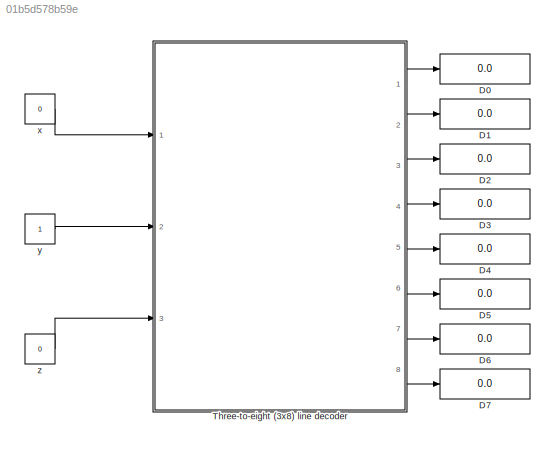
MODEL slx_01b5d578b59e
KIND model
CONFIG AbsTol = auto
CONFIG FixedStep = auto
CONFIG MaxStep = auto
CONFIG MinStep = auto
CONFIG RelTol = 1e-3
CONFIG SampleTimeConstraint = Unconstrained
CONFIG Solver = ode45
CONFIG SolverMode = Auto
CONFIG SolverName = ode45
CONFIG StartTime = 0.0
CONFIG StopTime = 10.0
BLOCK [Display] D0
  Decimation = 1
  Ports = [1]
BLOCK [Display] D1
  Decimation = 1
  Ports = [1]
BLOCK [Display] D2
  Decimation = 1
  Ports = [1]
BLOCK [Display] D3
  Decimation = 1
  Ports = [1]
BLOCK [Display] D4
  Decimation = 1
  Ports = [1]
BLOCK [Display] D5
  Decimation = 1
  Ports = [1]
BLOCK [Display] D6
  Decimation = 1
  Ports = [1]
BLOCK [Display] D7
  Decimation = 1
  Ports = [1]
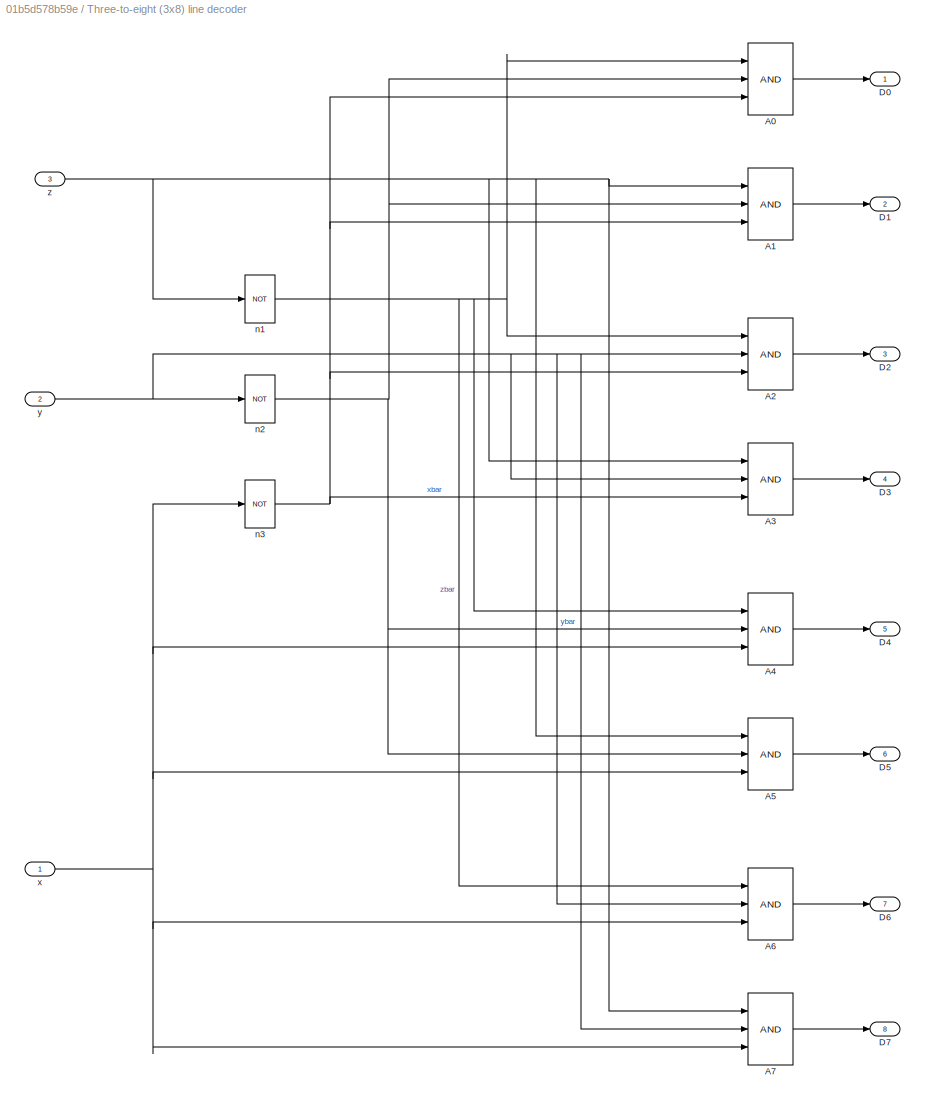
BLOCK [SubSystem] Three-to-eight (3x8) line decoder
  Ports = [3, 8]
  RequestExecContextInheritance = off
BLOCK [Logic] Three-to-eight (3x8) line decoder/A0
  AllPortsSameDT = off
  IconShape = distinctive
  Inputs = 3
  OutDataTypeStr = boolean
  Ports = [3, 1]
BLOCK [Logic] Three-to-eight (3x8) line decoder/A1
  AllPortsSameDT = off
  IconShape = distinctive
  Inputs = 3
  OutDataTypeStr = boolean
  Ports = [3, 1]
BLOCK [Logic] Three-to-eight (3x8) line decoder/A2
  AllPortsSameDT = off
  IconShape = distinctive
  Inputs = 3
  OutDataTypeStr = boolean
  Ports = [3, 1]
BLOCK [Logic] Three-to-eight (3x8) line decoder/A3
  AllPortsSameDT = off
  IconShape = distinctive
  Inputs = 3
  OutDataTypeStr = boolean
  Ports = [3, 1]
BLOCK [Logic] Three-to-eight (3x8) line decoder/A4
  AllPortsSameDT = off
  IconShape = distinctive
  Inputs = 3
  OutDataTypeStr = boolean
  Ports = [3, 1]
BLOCK [Logic] Three-to-eight (3x8) line decoder/A5
  AllPortsSameDT = off
  IconShape = distinctive
  Inputs = 3
  OutDataTypeStr = boolean
  Ports = [3, 1]
BLOCK [Logic] Three-to-eight (3x8) line decoder/A6
  AllPortsSameDT = off
  IconShape = distinctive
  Inputs = 3
  OutDataTypeStr = boolean
  Ports = [3, 1]
BLOCK [Logic] Three-to-eight (3x8) line decoder/A7
  AllPortsSameDT = off
  IconShape = distinctive
  Inputs = 3
  OutDataTypeStr = boolean
  Ports = [3, 1]
BLOCK [Outport] Three-to-eight (3x8) line decoder/D0
  IconDisplay = Port number
BLOCK [Outport] Three-to-eight (3x8) line decoder/D1
  IconDisplay = Port number
  Port = 2
BLOCK [Outport] Three-to-eight (3x8) line decoder/D2
  IconDisplay = Port number
  Port = 3
BLOCK [Outport] Three-to-eight (3x8) line decoder/D3
  IconDisplay = Port number
  Port = 4
BLOCK [Outport] Three-to-eight (3x8) line decoder/D4
  IconDisplay = Port number
  Port = 5
BLOCK [Outport] Three-to-eight (3x8) line decoder/D5
  IconDisplay = Port number
  Port = 6
BLOCK [Outport] Three-to-eight (3x8) line decoder/D6
  IconDisplay = Port number
  Port = 7
BLOCK [Outport] Three-to-eight (3x8) line decoder/D7
  IconDisplay = Port number
  Port = 8
BLOCK [Logic] Three-to-eight (3x8) line decoder/n1
  AllPortsSameDT = off
  IconShape = distinctive
  Inputs = 3
  Operator = NOT
  OutDataTypeStr = boolean
  Ports = [1, 1]
BLOCK [Logic] Three-to-eight (3x8) line decoder/n2
  AllPortsSameDT = off
  IconShape = distinctive
  Inputs = 3
  Operator = NOT
  OutDataTypeStr = boolean
  Ports = [1, 1]
BLOCK [Logic] Three-to-eight (3x8) line decoder/n3
  AllPortsSameDT = off
  IconShape = distinctive
  Inputs = 3
  Operator = NOT
  OutDataTypeStr = boolean
  Ports = [1, 1]
BLOCK [Inport] Three-to-eight (3x8) line decoder/x
  IconDisplay = Port number
BLOCK [Inport] Three-to-eight (3x8) line decoder/y
  IconDisplay = Port number
  Port = 2
BLOCK [Inport] Three-to-eight (3x8) line decoder/z
  IconDisplay = Port number
  Port = 3
BLOCK [Constant] x
  OutDataTypeStr = boolean
  Value = 0
BLOCK [Constant] y
  OutDataTypeStr = boolean
BLOCK [Constant] z
  OutDataTypeStr = boolean
  Value = 0
LINE Three-to-eight (3x8) line decoder/A0:1 -> Three-to-eight (3x8) line decoder/D0:1
LINE Three-to-eight (3x8) line decoder/A1:1 -> Three-to-eight (3x8) line decoder/D1:1
LINE Three-to-eight (3x8) line decoder/A2:1 -> Three-to-eight (3x8) line decoder/D2:1
LINE Three-to-eight (3x8) line decoder/A3:1 -> Three-to-eight (3x8) line decoder/D3:1
LINE Three-to-eight (3x8) line decoder/A4:1 -> Three-to-eight (3x8) line decoder/D4:1
LINE Three-to-eight (3x8) line decoder/A5:1 -> Three-to-eight (3x8) line decoder/D5:1
LINE Three-to-eight (3x8) line decoder/A6:1 -> Three-to-eight (3x8) line decoder/D6:1
LINE Three-to-eight (3x8) line decoder/A7:1 -> Three-to-eight (3x8) line decoder/D7:1
NET Three-to-eight (3x8) line decoder/n1:1 -> Three-to-eight (3x8) line decoder/A0:1, Three-to-eight (3x8) line decoder/A2:1, Three-to-eight (3x8) line decoder/A4:1, Three-to-eight (3x8) line decoder/A6:1
NET Three-to-eight (3x8) line decoder/n2:1 -> Three-to-eight (3x8) line decoder/A0:2, Three-to-eight (3x8) line decoder/A1:2, Three-to-eight (3x8) line decoder/A4:2, Three-to-eight (3x8) line decoder/A5:2
NET Three-to-eight (3x8) line decoder/n3:1 -> Three-to-eight (3x8) line decoder/A0:3, Three-to-eight (3x8) line decoder/A1:3, Three-to-eight (3x8) line decoder/A2:3, Three-to-eight (3x8) line decoder/A3:3
NET Three-to-eight (3x8) line decoder/x:1 -> Three-to-eight (3x8) line decoder/A4:3, Three-to-eight (3x8) line decoder/A5:3, Three-to-eight (3x8) line decoder/A6:3, Three-to-eight (3x8) line decoder/A7:3, Three-to-eight (3x8) line decoder/n3:1
NET Three-to-eight (3x8) line decoder/y:1 -> Three-to-eight (3x8) line decoder/A2:2, Three-to-eight (3x8) line decoder/A3:2, Three-to-eight (3x8) line decoder/A6:2, Three-to-eight (3x8) line decoder/A7:2, Three-to-eight (3x8) line decoder/n2:1
NET Three-to-eight (3x8) line decoder/z:1 -> Three-to-eight (3x8) line decoder/A1:1, Three-to-eight (3x8) line decoder/A3:1, Three-to-eight (3x8) line decoder/A5:1, Three-to-eight (3x8) line decoder/A7:1, Three-to-eight (3x8) line decoder/n1:1
LINE Three-to-eight (3x8) line decoder:1 -> D0:1
LINE Three-to-eight (3x8) line decoder:2 -> D1:1
LINE Three-to-eight (3x8) line decoder:3 -> D2:1
LINE Three-to-eight (3x8) line decoder:4 -> D3:1
LINE Three-to-eight (3x8) line decoder:5 -> D4:1
LINE Three-to-eight (3x8) line decoder:6 -> D5:1
LINE Three-to-eight (3x8) line decoder:7 -> D6:1
LINE Three-to-eight (3x8) line decoder:8 -> D7:1
LINE x:1 -> Three-to-eight (3x8) line decoder:1
LINE y:1 -> Three-to-eight (3x8) line decoder:2
LINE z:1 -> Three-to-eight (3x8) line decoder:3
note: NET lines group one-source signal fan-out (src -> all destinations, sorted); 1:1 wires keep LINE
